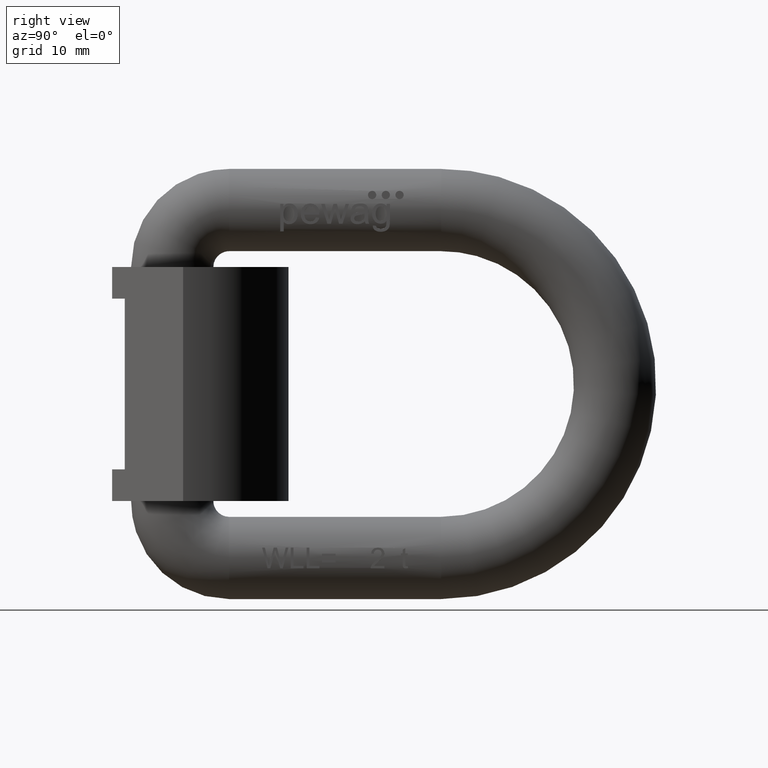
[diagram: clean part render]
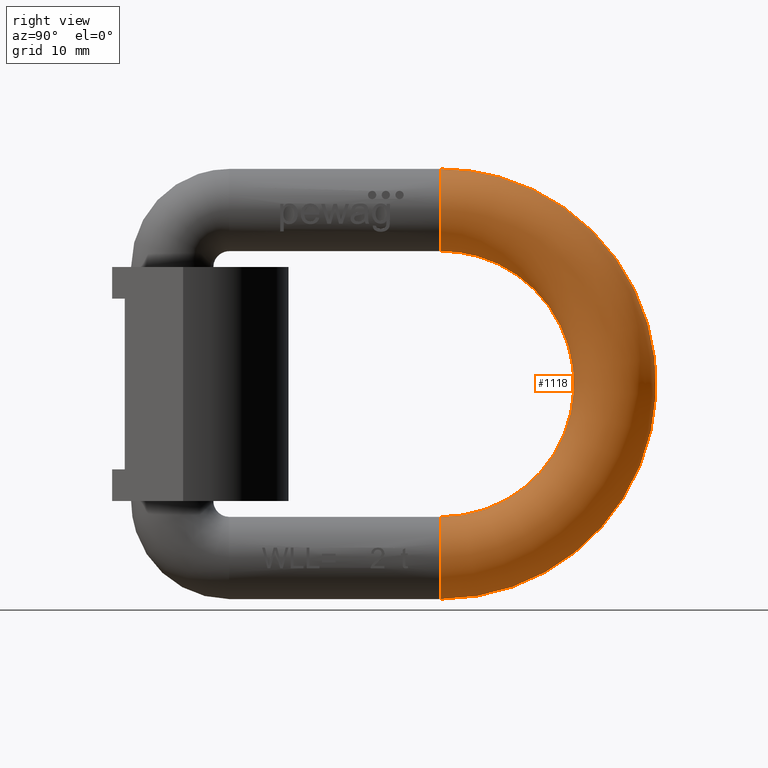
[diagram: same view with one face highlighted and labeled with its STEP entity id]
A machine part, right view. The second image highlights one B-rep face of the part: STEP entity #1118.
In plain terms, the highlighted toroidal blend (fillet) surface has major radius 27.5 mm and minor (blend) radius 6.5 mm.
Its self-contained STEP definition (entity closure, byte-faithful):
#174=TOROIDAL_SURFACE('',#6834,27.5,6.5);
#853=FACE_BOUND('',#1876,.T.);
#854=FACE_BOUND('',#1877,.T.);
#1118=ADVANCED_FACE('',(#853,#854),#174,.T.);
#1876=EDGE_LOOP('',(#2660));
#1877=EDGE_LOOP('',(#2661));
#2234=CIRCLE('',#6743,6.5);
#2271=CIRCLE('',#6812,6.5);
#2660=ORIENTED_EDGE('',*,*,#5073,.T.);
#2661=ORIENTED_EDGE('',*,*,#4868,.F.);
#4214=VERTEX_POINT('',#8309);
#4419=VERTEX_POINT('',#9843);
#4868=EDGE_CURVE('',#4214,#4214,#2234,.T.);
#5073=EDGE_CURVE('',#4419,#4419,#2271,.T.);
#6743=AXIS2_PLACEMENT_3D('',#8308,#7123,#7124);
#6812=AXIS2_PLACEMENT_3D('',#9842,#7313,#7314);
#6834=AXIS2_PLACEMENT_3D('',#10627,#7367,#7368);
#7123=DIRECTION('',(0.,-1.,4.24204618364239E-16));
#7124=DIRECTION('',(0.,0.,-1.));
#7313=DIRECTION('',(0.,1.,3.250973740351E-15));
#7314=DIRECTION('',(0.,-3.20256641718795E-15,1.));
#7367=DIRECTION('',(1.,0.,0.));
#7368=DIRECTION('',(0.,0.,-1.));
#8308=CARTESIAN_POINT('',(0.,52.,-27.5));
#8309=CARTESIAN_POINT('',(0.,52.,-34.));
#9842=CARTESIAN_POINT('',(0.,52.,27.5));
#9843=CARTESIAN_POINT('',(0.,52.,34.));
#10627=CARTESIAN_POINT('',(0.,52.,0.));